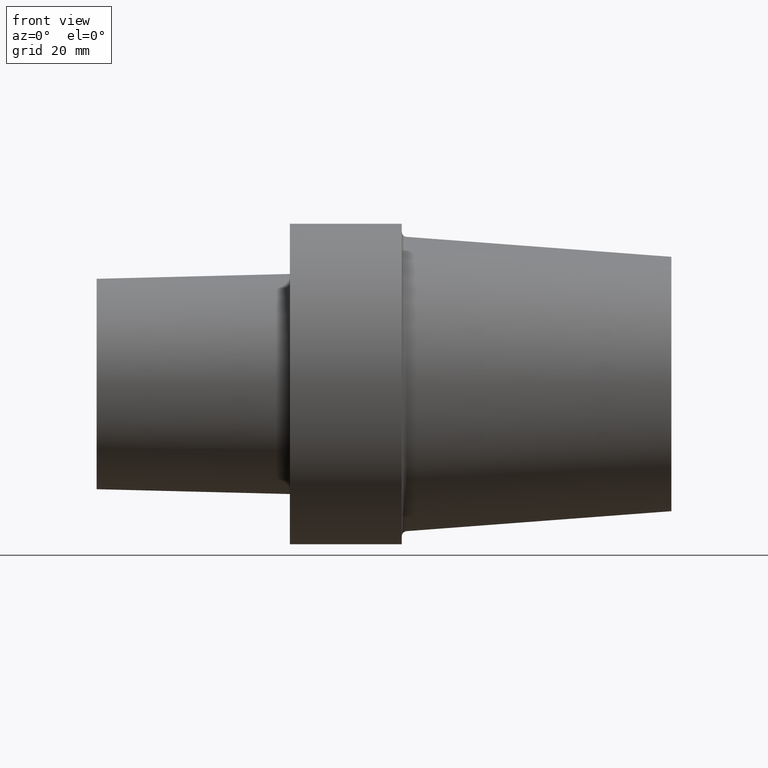
[diagram: clean part render]
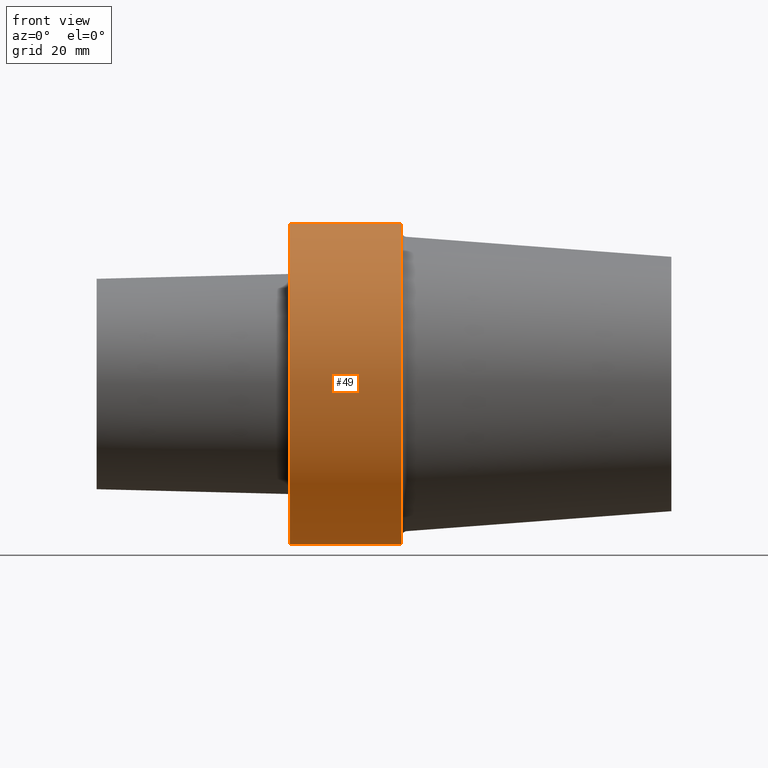
[diagram: same view with one face highlighted and labeled with its STEP entity id]
A machine part, front view. The second image highlights one B-rep face of the part: STEP entity #49.
In plain terms, the highlighted cylindrical surface (partial cylindrical patch) has radius 31.5 mm, axis along (-1, 0, 0).
Its self-contained STEP definition (entity closure, byte-faithful):
#8 = LINE ( 'NONE', #239, #291 ) ;
#25 = VERTEX_POINT ( 'NONE', #61 ) ;
#26 = ORIENTED_EDGE ( 'NONE', *, *, #141, .F. ) ;
#29 = CIRCLE ( 'NONE', #378, 31.49999996787000001 ) ;
#31 = LINE ( 'NONE', #386, #285 ) ;
#34 = FACE_OUTER_BOUND ( 'NONE', #118, .T. ) ;
#49 = ADVANCED_FACE ( 'NONE', ( #34 ), #206, .T. ) ;
#58 = ORIENTED_EDGE ( 'NONE', *, *, #225, .T. ) ;
#61 = CARTESIAN_POINT ( 'NONE',  ( 0.000000000000000000, 3.857637413379370248E-15, -31.49999996787000001 ) ) ;
#94 = DIRECTION ( 'NONE',  ( -1.000000000000000000, 0.000000000000000000, 0.000000000000000000 ) ) ;
#100 = DIRECTION ( 'NONE',  ( -1.000000000000000000, 0.000000000000000000, 0.000000000000000000 ) ) ;
#106 = AXIS2_PLACEMENT_3D ( 'NONE', #293, #100, #295 ) ;
#118 = EDGE_LOOP ( 'NONE', ( #255, #193, #58, #26 ) ) ;
#121 = DIRECTION ( 'NONE',  ( -1.000000000000000000, 0.000000000000000000, 0.000000000000000000 ) ) ;
#125 = DIRECTION ( 'NONE',  ( 0.000000000000000000, 0.000000000000000000, 1.000000000000000000 ) ) ;
#141 = EDGE_CURVE ( 'NONE', #25, #317, #29, .T. ) ;
#174 = CARTESIAN_POINT ( 'NONE',  ( 21.99999997755999814, 0.000000000000000000, 31.49999996787000001 ) ) ;
#190 = VERTEX_POINT ( 'NONE', #174 ) ;
#193 = ORIENTED_EDGE ( 'NONE', *, *, #251, .T. ) ;
#205 = DIRECTION ( 'NONE',  ( -1.000000000000000000, 0.000000000000000000, 0.000000000000000000 ) ) ;
#206 = CYLINDRICAL_SURFACE ( 'NONE', #106, 31.49999996787000001 ) ;
#225 = EDGE_CURVE ( 'NONE', #190, #317, #31, .T. ) ;
#232 = DIRECTION ( 'NONE',  ( -1.000000000000000000, 0.000000000000000000, 0.000000000000000000 ) ) ;
#234 = CARTESIAN_POINT ( 'NONE',  ( 21.99999997755999814, 0.000000000000000000, 0.000000000000000000 ) ) ;
#239 = CARTESIAN_POINT ( 'NONE',  ( -37.99999996124000035, 3.857637413379370248E-15, -31.49999996787000001 ) ) ;
#240 = CARTESIAN_POINT ( 'NONE',  ( 0.000000000000000000, 0.000000000000000000, 0.000000000000000000 ) ) ;
#247 = AXIS2_PLACEMENT_3D ( 'NONE', #234, #94, #125 ) ;
#251 = EDGE_CURVE ( 'NONE', #256, #190, #314, .T. ) ;
#255 = ORIENTED_EDGE ( 'NONE', *, *, #257, .F. ) ;
#256 = VERTEX_POINT ( 'NONE', #353 ) ;
#257 = EDGE_CURVE ( 'NONE', #256, #25, #8, .T. ) ;
#265 = DIRECTION ( 'NONE',  ( 0.000000000000000000, 0.000000000000000000, 1.000000000000000000 ) ) ;
#285 = VECTOR ( 'NONE', #205, 1000.000000000000000 ) ;
#291 = VECTOR ( 'NONE', #232, 1000.000000000000000 ) ;
#293 = CARTESIAN_POINT ( 'NONE',  ( -37.99999996124000035, 0.000000000000000000, 0.000000000000000000 ) ) ;
#295 = DIRECTION ( 'NONE',  ( 0.000000000000000000, 0.000000000000000000, 1.000000000000000000 ) ) ;
#314 = CIRCLE ( 'NONE', #247, 31.49999996787000001 ) ;
#317 = VERTEX_POINT ( 'NONE', #325 ) ;
#325 = CARTESIAN_POINT ( 'NONE',  ( 0.000000000000000000, 0.000000000000000000, 31.49999996787000001 ) ) ;
#353 = CARTESIAN_POINT ( 'NONE',  ( 21.99999997755999814, 3.857637413379370248E-15, -31.49999996787000001 ) ) ;
#378 = AXIS2_PLACEMENT_3D ( 'NONE', #240, #121, #265 ) ;
#386 = CARTESIAN_POINT ( 'NONE',  ( -37.99999996124000035, 0.000000000000000000, 31.49999996787000001 ) ) ;